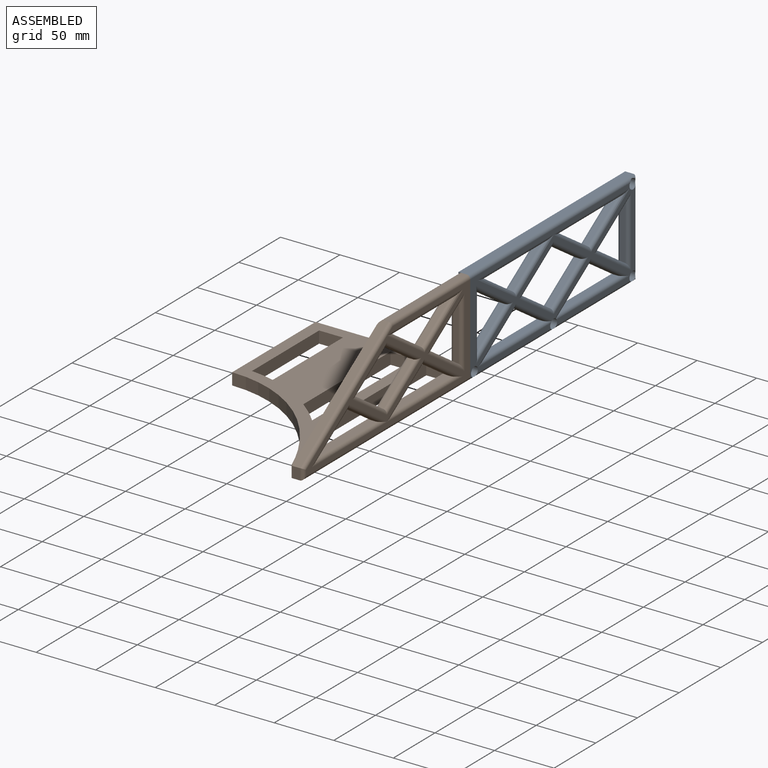
[diagram: assembled view]
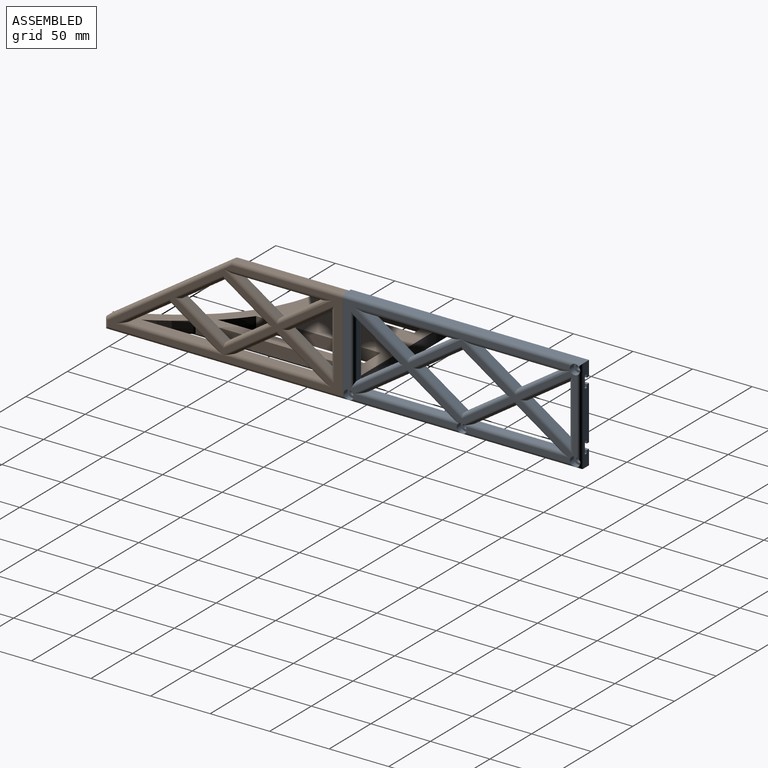
[diagram: assembled view, second angle]
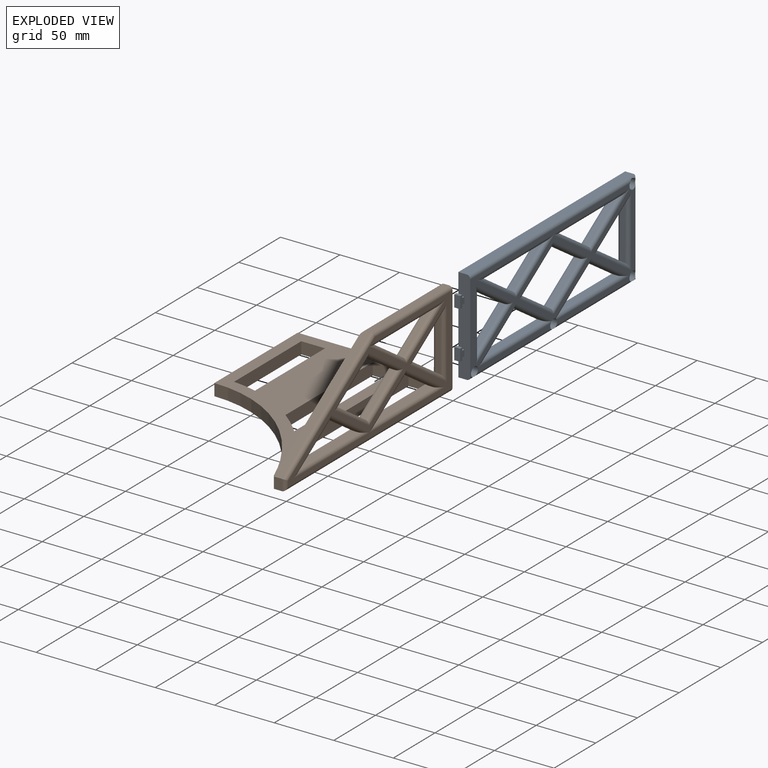
[diagram: exploded view]
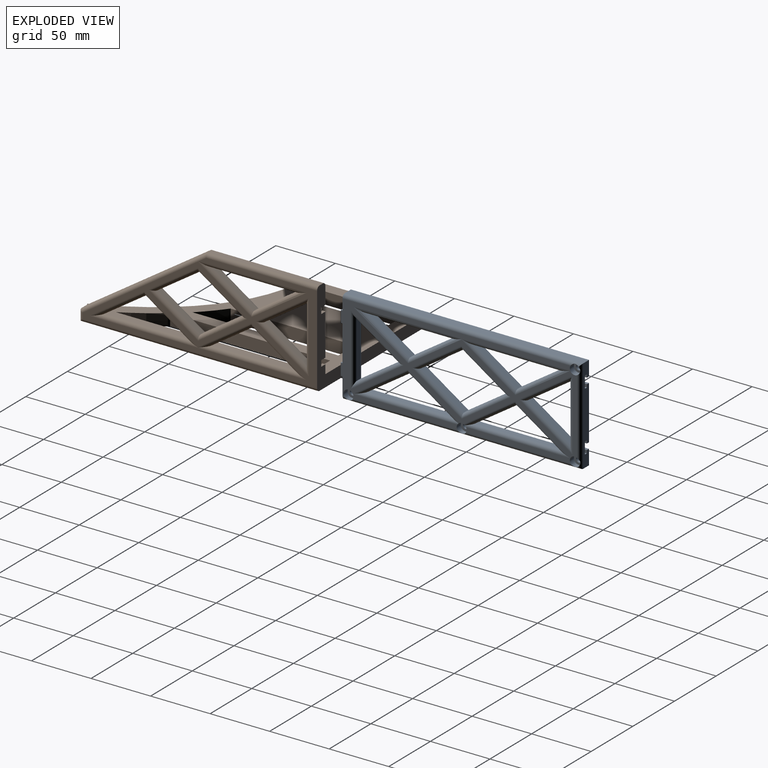
[diagram: exploded view, second angle]
ASSEMBLY  parts=2 mates=3
PART A: 116 faces, bbox 10x205x80 mm
  f0: plane 80x7mm, normal (0,1,0), area 485mm2, adj f8,f26,f33,f35,f84,f85,f86,f87
  f1: plane 197x74mm, normal (1,0,0), area 3906.3mm2, adj f3,f4,f5,f6,f7,f8,f9,f25
  f2: cylinder r=3mm len=181.79mm, axis (0,-1,0), area 745.6mm2, adj f21,f23,f35,f51,f52,f53,f54,f81
  f3: cylinder r=3mm len=88.17mm, axis (0,1,0), area 370.6mm2, adj f1,f5,f23,f70,f83
  f4: cylinder r=3mm len=88.17mm, axis (0,1,0), area 370.6mm2, adj f1,f6,f21,f71,f83
  f5: cylinder r=3mm len=44.94mm, axis (0,-0.83,0.55), area 222.5mm2, adj f1,f3,f32,f70,f83
  f6: cylinder r=3mm len=44.94mm, axis (0,-0.83,-0.55), area 222.5mm2, adj f1,f4,f22,f71,f83
  f7: cylinder r=3mm len=200mm, axis (0,-1,0), area 903mm2, adj f1,f8,f25,f26,f77,f80,f83
  f8: cylinder r=3mm len=80mm, axis (0,0,-1), area 344.8mm2, adj f0,f1,f7,f9,f74,f77
  f9: cylinder r=3mm len=200mm, axis (0,1,0), area 926.4mm2, adj f1,f8,f25,f33,f74
  f10: plane 71.97x4mm, normal (0,0,-1), area 287.9mm2, adj f11,f34,f36,f56
  f11: plane 35.99x23.99mm, normal (0,-0.55,0.83), area 173mm2, adj f10,f34,f40,f59
  f12: plane 35.99x23.99mm, normal (0,-0.55,-0.83), area 173mm2, adj f13,f27,f43,f62
  f13: plane 35.99x23.99mm, normal (0,-0.55,0.83), area 173mm2, adj f12,f14,f41,f60
  f14: plane 35.99x23.99mm, normal (0,0.55,0.83), area 173mm2, adj f13,f27,f42,f61
  f15: plane 35.99x23.99mm, normal (0,0.55,0.83), area 173mm2, adj f16,f28,f37,f55
  f16: plane 71.97x4mm, normal (0,0,-1), area 287.9mm2, adj f15,f28,f36,f56
  f17: plane 35.99x23.99mm, normal (0,-0.55,0.83), area 173mm2, adj f18,f29,f45,f64
  f18: plane 47.98x4mm, normal (0,1,0), area 191.9mm2, adj f17,f29,f46,f65
  f19: plane 47.98x4mm, normal (0,-1,0), area 191.9mm2, adj f20,f30,f48,f67
  f20: plane 35.99x23.99mm, normal (0,0.55,0.83), area 173mm2, adj f19,f30,f49,f68
  f21: plane 71.97x4mm, normal (0,0,1), area 287.9mm2, adj f2,f4,f22,f31
  f22: plane 35.99x23.99mm, normal (0,0.55,-0.83), area 173mm2, adj f6,f21,f31,f53
  f23: plane 71.97x4mm, normal (0,0,1), area 287.9mm2, adj f2,f3,f24,f32
  f24: plane 35.99x23.99mm, normal (0,0.55,-0.83), area 173mm2, adj f23,f32,f51,f70
  f25: plane 80x10mm, normal (0,-1,0), area 746.1mm2, adj f1,f7,f9,f26,f33,f35,f100,f101
  f26: plane 200x7mm, normal (0,0,-1), area 1400mm2, adj f0,f7,f25,f35
  f27: plane 35.99x23.99mm, normal (0,0.55,-0.83), area 173mm2, adj f12,f14,f44,f63
  f28: plane 35.99x23.99mm, normal (0,-0.55,0.83), area 173mm2, adj f15,f16,f38,f57
  f29: plane 35.99x23.99mm, normal (0,-0.55,-0.83), area 173mm2, adj f17,f18,f47,f66
  f30: plane 35.99x23.99mm, normal (0,0.55,-0.83), area 173mm2, adj f19,f20,f50,f69
  f31: plane 35.99x23.99mm, normal (0,-0.55,-0.83), area 173mm2, adj f21,f22,f54,f71
  f32: plane 35.99x23.99mm, normal (0,-0.55,-0.83), area 173mm2, adj f5,f23,f24,f52
  f33: plane 200x7mm, normal (0,0,1), area 1400mm2, adj f0,f9,f25,f35
  f34: plane 35.99x23.99mm, normal (0,0.55,0.83), area 173mm2, adj f10,f11,f39,f58
  f35: plane 205x80mm, normal (-1,0,0), area 5433.5mm2, adj f0,f2,f25,f26,f33,f36,f37,f38
  f36: cylinder r=3mm len=181.79mm, axis (0,1,0), area 745.9mm2, adj f10,f16,f35,f37,f38,f39,f40
  f37: cylinder r=3mm len=47.56mm, axis (0,-0.83,0.55), area 224.2mm2, adj f15,f35,f36,f38
  f38: cylinder r=3mm len=46.81mm, axis (0,-0.83,-0.55), area 224.1mm2, adj f28,f35,f36,f37,f39
  f39: cylinder r=3mm len=46.81mm, axis (0,-0.83,0.55), area 224.1mm2, adj f34,f35,f36,f38,f40
  f40: cylinder r=3mm len=47.56mm, axis (0,-0.83,-0.55), area 224.2mm2, adj f11,f35,f36,f39
  f41: cylinder r=3mm len=43.06mm, axis (0,-0.83,-0.55), area 214.9mm2, adj f13,f35,f42,f43
  f42: cylinder r=3mm len=43.06mm, axis (0,-0.83,0.55), area 214.9mm2, adj f14,f35,f41,f44
  f43: cylinder r=3mm len=43.06mm, axis (0,0.83,-0.55), area 214.9mm2, adj f12,f35,f41,f44
  f44: cylinder r=3mm len=43.06mm, axis (0,0.83,0.55), area 214.9mm2, adj f27,f35,f42,f43
  f45: cylinder r=3mm len=46.06mm, axis (0,-0.83,-0.55), area 221.1mm2, adj f17,f35,f46,f47
  f46: cylinder r=3mm len=59.19mm, axis (0,0,1), area 245.3mm2, adj f18,f35,f45,f47
  f47: cylinder r=3mm len=46.06mm, axis (0,0.83,-0.55), area 221.1mm2, adj f29,f35,f45,f46
  f48: cylinder r=3mm len=59.19mm, axis (0,0,-1), area 245.3mm2, adj f19,f35,f49,f50
  f49: cylinder r=3mm len=46.06mm, axis (0,-0.83,0.55), area 221.1mm2, adj f20,f35,f48,f50
  f50: cylinder r=3mm len=46.06mm, axis (0,0.83,0.55), area 221.1mm2, adj f30,f35,f48,f49
  f51: cylinder r=3mm len=47.56mm, axis (0,0.83,0.55), area 224.2mm2, adj f2,f24,f35,f52
  f52: cylinder r=3mm len=46.81mm, axis (0,0.83,-0.55), area 224.1mm2, adj f2,f32,f35,f51,f53
  f53: cylinder r=3mm len=46.81mm, axis (0,0.83,0.55), area 224.1mm2, adj f2,f22,f35,f52,f54
  f54: cylinder r=3mm len=47.56mm, axis (0,0.83,-0.55), area 224.2mm2, adj f2,f31,f35,f53
  f55: cylinder r=3mm len=47.56mm, axis (0,0.83,-0.55), area 224.2mm2, adj f1,f15,f56,f57
  f56: cylinder r=3mm len=181.79mm, axis (0,-1,0), area 745.9mm2, adj f1,f10,f16,f55,f57,f58,f59
  f57: cylinder r=3mm len=46.81mm, axis (0,0.83,0.55), area 224.1mm2, adj f1,f28,f55,f56,f58
  f58: cylinder r=3mm len=46.81mm, axis (0,0.83,-0.55), area 224.1mm2, adj f1,f34,f56,f57,f59
  f59: cylinder r=3mm len=47.56mm, axis (0,0.83,0.55), area 224.2mm2, adj f1,f11,f56,f58
  f60: cylinder r=3mm len=43.06mm, axis (0,0.83,0.55), area 214.9mm2, adj f1,f13,f61,f62
  f61: cylinder r=3mm len=43.06mm, axis (0,0.83,-0.55), area 214.9mm2, adj f1,f14,f60,f63
  f62: cylinder r=3mm len=43.06mm, axis (0,-0.83,0.55), area 214.9mm2, adj f1,f12,f60,f63
  f63: cylinder r=3mm len=43.06mm, axis (0,-0.83,-0.55), area 214.9mm2, adj f1,f27,f61,f62
  f64: cylinder r=3mm len=46.06mm, axis (0,0.83,0.55), area 221.1mm2, adj f1,f17,f65,f66
  f65: cylinder r=3mm len=59.19mm, axis (0,0,-1), area 245.3mm2, adj f1,f18,f64,f66
  f66: cylinder r=3mm len=46.06mm, axis (0,-0.83,0.55), area 221.1mm2, adj f1,f29,f64,f65
  f67: cylinder r=3mm len=59.19mm, axis (0,0,1), area 245.3mm2, adj f1,f19,f68,f69
  f68: cylinder r=3mm len=46.06mm, axis (0,0.83,-0.55), area 221.1mm2, adj f1,f20,f67,f69
  f69: cylinder r=3mm len=46.06mm, axis (0,-0.83,-0.55), area 221.1mm2, adj f1,f30,f67,f68
  f70: cylinder r=3mm len=47.56mm, axis (0,-0.83,-0.55), area 224.2mm2, adj f1,f3,f5,f24
  f71: cylinder r=3mm len=47.56mm, axis (0,-0.83,0.55), area 224.2mm2, adj f1,f4,f6,f31
  f72: cylinder r=2.25mm len=5.12mm, axis (1,0,0), area 72.3mm2, adj f35,f73
  f73: plane 8.25x8.25mm, normal (1,0,0), area 37.6mm2, adj f72,f74
  f74: cylinder r=4.12mm len=8.25mm, axis (1,0,0), area 119mm2, adj f1,f8,f9,f73
  f75: cylinder r=2.25mm len=5.12mm, axis (1,0,0), area 72.3mm2, adj f35,f76
  f76: plane 8.25x8.25mm, normal (1,0,0), area 37.6mm2, adj f75,f77
  f77: cylinder r=4.12mm len=8.25mm, axis (1,0,0), area 119mm2, adj f1,f7,f8,f76
  f78: cylinder r=2.25mm len=5.12mm, axis (1,0,0), area 72.3mm2, adj f35,f79
  f79: plane 8.25x8.25mm, normal (1,0,0), area 37.6mm2, adj f78,f80
  f80: cylinder r=4.12mm len=8.25mm, axis (1,0,0), area 122.7mm2, adj f1,f7,f79
  f81: cylinder r=2.25mm len=5.12mm, axis (1,0,0), area 72.3mm2, adj f2,f35,f82
  f82: plane 8.25x8.25mm, normal (1,0,0), area 37.6mm2, adj f81,f83
  f83: cylinder r=4.12mm len=8.25mm, axis (1,0,0), area 122.2mm2, adj f1,f3,f4,f5,f6,f7,f82
  f84: plane 5x2.5mm, normal (0,0,-1), area 12.5mm2, adj f0,f35,f85,f91
  f85: plane 5x2.5mm, normal (1,0,0), area 12.5mm2, adj f0,f84,f86,f91
  f86: plane 5x2.5mm, normal (0,0,-1), area 12.5mm2, adj f0,f85,f87,f91
  f87: plane 10x5mm, normal (-1,0,0), area 50mm2, adj f0,f86,f88,f91
  f88: plane 5x2.5mm, normal (0,0,1), area 12.5mm2, adj f0,f87,f89,f91
  f89: plane 5x2.5mm, normal (1,0,0), area 12.5mm2, adj f0,f88,f90,f91
  f90: plane 5x2.5mm, normal (0,0,1), area 12.5mm2, adj f0,f35,f89,f91
  f91: plane 10x5mm, normal (0,1,0), area 37.5mm2, adj f35,f84,f85,f86,f87,f88,f89,f90
  f92: plane 5x2.5mm, normal (0,0,-1), area 12.5mm2, adj f0,f35,f93,f99
  f93: plane 5x2.5mm, normal (1,0,0), area 12.5mm2, adj f0,f92,f94,f99
  f94: plane 5x2.5mm, normal (0,0,-1), area 12.5mm2, adj f0,f93,f95,f99
  f95: plane 10x5mm, normal (-1,0,0), area 50mm2, adj f0,f94,f96,f99
  f96: plane 5x2.5mm, normal (0,0,1), area 12.5mm2, adj f0,f95,f97,f99
  f97: plane 5x2.5mm, normal (1,0,0), area 12.5mm2, adj f0,f96,f98,f99
  f98: plane 5x2.5mm, normal (0,0,1), area 12.5mm2, adj f0,f35,f97,f99
  f99: plane 10x5mm, normal (0,1,0), area 37.5mm2, adj f35,f92,f93,f94,f95,f96,f97,f98
  f100: plane 5x2.5mm, normal (0,0,1), area 12.5mm2, adj f25,f35,f106,f107
  f101: plane 5x2.5mm, normal (0,0,-1), area 12.5mm2, adj f25,f35,f102,f107
  f102: plane 5x2.5mm, normal (0,1,0), area 12.5mm2, adj f35,f101,f103,f107
  f103: plane 5x2.5mm, normal (0,0,-1), area 12.5mm2, adj f35,f102,f104,f107
  f104: plane 10x5mm, normal (0,-1,0), area 50mm2, adj f35,f103,f105,f107
  f105: plane 5x2.5mm, normal (0,0,1), area 12.5mm2, adj f35,f104,f106,f107
  f106: plane 5x2.5mm, normal (0,1,0), area 12.5mm2, adj f35,f100,f105,f107
  f107: plane 10x5mm, normal (1,0,0), area 37.5mm2, adj f25,f100,f101,f102,f103,f104,f105,f106
  f108: plane 5x2.5mm, normal (0,0,1), area 12.5mm2, adj f25,f35,f114,f115
  f109: plane 5x2.5mm, normal (0,0,-1), area 12.5mm2, adj f25,f35,f110,f115
  f110: plane 5x2.5mm, normal (0,1,0), area 12.5mm2, adj f35,f109,f111,f115
  f111: plane 5x2.5mm, normal (0,0,-1), area 12.5mm2, adj f35,f110,f112,f115
  f112: plane 10x5mm, normal (0,-1,0), area 50mm2, adj f35,f111,f113,f115
  f113: plane 5x2.5mm, normal (0,0,1), area 12.5mm2, adj f35,f112,f114,f115
  f114: plane 5x2.5mm, normal (0,1,0), area 12.5mm2, adj f35,f108,f113,f115
  f115: plane 10x5mm, normal (1,0,0), area 37.5mm2, adj f25,f108,f109,f110,f111,f112,f113,f114
PART B: 87 faces, bbox 130x200x80 mm
  f0: plane 199.01x77mm, normal (-1,0,0), area 4263.9mm2, adj f7,f8,f12,f14,f17,f23,f24,f25
  f1: plane 71.97x4mm, normal (0,0,-1), area 287.9mm2, adj f2,f21,f23,f42
  f2: plane 35.99x23.99mm, normal (0,-0.55,0.83), area 173mm2, adj f1,f21,f25,f44
  f3: plane 35.99x23.99mm, normal (0,-0.55,-0.83), area 173mm2, adj f4,f16,f28,f47
  f4: plane 35.99x23.99mm, normal (0,-0.55,0.83), area 173mm2, adj f3,f5,f26,f45
  f5: plane 35.99x23.99mm, normal (0,0.55,0.83), area 173mm2, adj f4,f16,f27,f46
  f6: plane 9.34x7mm, normal (0,-1,0), area 65.4mm2, adj f7,f17,f39,f79
  f7: plane 200x127mm, normal (0,0,-1), area 10003.9mm2, adj f0,f6,f8,f38,f73,f74,f75,f76
  f8: plane 130x80mm, normal (0,1,0), area 1944.2mm2, adj f0,f7,f9,f14,f22,f30,f38,f40
  f9: plane 94.01x4mm, normal (0,0,1), area 376.1mm2, adj f8,f17,f30,f40
  f10: plane 47.98x4mm, normal (0,-1,0), area 191.9mm2, adj f11,f18,f31,f49
  f11: plane 35.99x23.99mm, normal (0,0.55,0.83), area 173mm2, adj f10,f18,f32,f50
  f12: plane 82.79x7mm, normal (0,0,1), area 510.8mm2, adj f0,f13,f19,f34,f35,f53
  f13: plane 35.99x23.99mm, normal (0,0.55,-0.83), area 173mm2, adj f12,f19,f34,f55
  f14: plane 200x127mm, normal (0,0,1), area 9114.7mm2, adj f0,f8,f15,f20,f36,f37,f53,f73
  f15: plane 35.99x23.99mm, normal (0,0.55,-0.83), area 173mm2, adj f14,f20,f36,f52
  f16: plane 35.99x23.99mm, normal (0,0.55,-0.83), area 173mm2, adj f3,f5,f29,f48
  f17: plane 105.99x70.66mm, normal (0,-0.55,0.83), area 888.2mm2, adj f0,f6,f9,f30,f41,f78
  f18: plane 35.99x23.99mm, normal (0,0.55,-0.83), area 173mm2, adj f10,f11,f33,f51
  f19: plane 35.99x23.99mm, normal (0,-0.55,-0.83), area 173mm2, adj f12,f13,f35,f56
  f20: plane 35.99x23.99mm, normal (0,-0.55,-0.83), area 173mm2, adj f14,f15,f37,f54
  f21: plane 35.99x23.99mm, normal (0,0.55,0.83), area 173mm2, adj f1,f2,f24,f43
  f22: plane 197x74mm, normal (1,0,0), area 3169.9mm2, adj f8,f38,f39,f40,f41,f42,f43,f44
  f23: cylinder r=3mm len=91.79mm, axis (0,1,0), area 373.1mm2, adj f0,f1,f24,f25
  f24: cylinder r=3mm len=47.56mm, axis (0,-0.83,0.55), area 224.2mm2, adj f0,f21,f23,f25
  f25: cylinder r=3mm len=47.56mm, axis (0,-0.83,-0.55), area 224.2mm2, adj f0,f2,f23,f24
  f26: cylinder r=3mm len=43.06mm, axis (0,-0.83,-0.55), area 214.9mm2, adj f0,f4,f27,f28
  f27: cylinder r=3mm len=43.06mm, axis (0,-0.83,0.55), area 214.9mm2, adj f0,f5,f26,f29
  f28: cylinder r=3mm len=43.06mm, axis (0,0.83,-0.55), area 214.9mm2, adj f0,f3,f26,f29
  f29: cylinder r=3mm len=43.06mm, axis (0,0.83,0.55), area 214.9mm2, adj f0,f16,f27,f28
  f30: cylinder r=3mm len=98.51mm, axis (0,-1,0), area 450.7mm2, adj f0,f8,f9,f17
  f31: cylinder r=3mm len=59.19mm, axis (0,0,-1), area 245.3mm2, adj f0,f10,f32,f33
  f32: cylinder r=3mm len=46.06mm, axis (0,-0.83,0.55), area 221.1mm2, adj f0,f11,f31,f33
  f33: cylinder r=3mm len=46.06mm, axis (0,0.83,0.55), area 221.1mm2, adj f0,f18,f31,f32
  f34: cylinder r=3mm len=43.06mm, axis (0,0.83,0.55), area 214.9mm2, adj f0,f12,f13,f35
  f35: cylinder r=3mm len=43.06mm, axis (0,0.83,-0.55), area 214.9mm2, adj f0,f12,f19,f34
  f36: cylinder r=3mm len=43.06mm, axis (0,0.83,0.55), area 214.9mm2, adj f0,f14,f15,f37
  f37: cylinder r=3mm len=43.06mm, axis (0,0.83,-0.55), area 214.9mm2, adj f0,f14,f20,f36
  f38: cylinder r=3mm len=200mm, axis (0,-1,0), area 937.3mm2, adj f7,f8,f22,f39
  f39: cylinder r=3mm len=9.34mm, axis (0,0,1), area 36.1mm2, adj f6,f22,f38,f41
  f40: cylinder r=3mm len=94.01mm, axis (0,1,0), area 441.5mm2, adj f8,f9,f22,f41
  f41: cylinder r=3mm len=107.65mm, axis (0,0.83,0.55), area 595.8mm2, adj f17,f22,f39,f40,f42,f43
  f42: cylinder r=3mm len=90.89mm, axis (0,-1,0), area 372.9mm2, adj f1,f22,f41,f43,f44
  f43: cylinder r=3mm len=46.81mm, axis (0,0.83,-0.55), area 224.1mm2, adj f21,f22,f41,f42,f44
  f44: cylinder r=3mm len=47.56mm, axis (0,0.83,0.55), area 224.2mm2, adj f2,f22,f42,f43
  f45: cylinder r=3mm len=43.06mm, axis (0,0.83,0.55), area 214.9mm2, adj f4,f22,f46,f47
  f46: cylinder r=3mm len=43.06mm, axis (0,0.83,-0.55), area 214.9mm2, adj f5,f22,f45,f48
  f47: cylinder r=3mm len=43.06mm, axis (0,-0.83,0.55), area 214.9mm2, adj f3,f22,f45,f48
  f48: cylinder r=3mm len=43.06mm, axis (0,-0.83,-0.55), area 214.9mm2, adj f16,f22,f46,f47
  f49: cylinder r=3mm len=59.19mm, axis (0,0,1), area 245.3mm2, adj f10,f22,f50,f51
  f50: cylinder r=3mm len=46.06mm, axis (0,0.83,-0.55), area 221.1mm2, adj f11,f22,f49,f51
  f51: cylinder r=3mm len=46.06mm, axis (0,-0.83,-0.55), area 221.1mm2, adj f18,f22,f49,f50
  f52: cylinder r=3mm len=47.56mm, axis (0,-0.83,-0.55), area 224.2mm2, adj f15,f22,f53,f54
  f53: cylinder r=3mm len=181.79mm, axis (0,1,0), area 745.9mm2, adj f12,f14,f22,f52,f54,f55,f56
  f54: cylinder r=3mm len=46.81mm, axis (0,-0.83,0.55), area 224.1mm2, adj f20,f22,f52,f53,f55
  f55: cylinder r=3mm len=46.81mm, axis (0,-0.83,-0.55), area 224.1mm2, adj f13,f22,f53,f54,f56
  f56: cylinder r=3mm len=47.56mm, axis (0,-0.83,0.55), area 224.2mm2, adj f19,f22,f53,f55
  f57: plane 5x2.5mm, normal (0,-1,0), area 12.5mm2, adj f0,f58,f63,f64
  f58: plane 5x2.5mm, normal (0,0,-1), area 12.5mm2, adj f0,f8,f57,f64
  f59: plane 5x2.5mm, normal (0,0,1), area 12.5mm2, adj f0,f8,f60,f64
  f60: plane 5x2.5mm, normal (0,-1,0), area 12.5mm2, adj f0,f59,f61,f64
  f61: plane 5x2.5mm, normal (0,0,1), area 12.5mm2, adj f0,f60,f62,f64
  f62: plane 10x5mm, normal (0,1,0), area 50mm2, adj f0,f61,f63,f64
  f63: plane 5x2.5mm, normal (0,0,-1), area 12.5mm2, adj f0,f57,f62,f64
  f64: plane 10x5mm, normal (-1,0,0), area 37.5mm2, adj f8,f57,f58,f59,f60,f61,f62,f63
  f65: plane 5x2.5mm, normal (0,-1,0), area 12.5mm2, adj f0,f66,f71,f72
  f66: plane 5x2.5mm, normal (0,0,-1), area 12.5mm2, adj f0,f8,f65,f72
  f67: plane 5x2.5mm, normal (0,0,1), area 12.5mm2, adj f0,f8,f68,f72
  f68: plane 5x2.5mm, normal (0,-1,0), area 12.5mm2, adj f0,f67,f69,f72
  f69: plane 5x2.5mm, normal (0,0,1), area 12.5mm2, adj f0,f68,f70,f72
  f70: plane 10x5mm, normal (0,1,0), area 50mm2, adj f0,f69,f71,f72
  f71: plane 5x2.5mm, normal (0,0,-1), area 12.5mm2, adj f0,f65,f70,f72
  f72: plane 10x5mm, normal (-1,0,0), area 37.5mm2, adj f8,f65,f66,f67,f68,f69,f70,f71
  f73: plane 104.61x10mm, normal (1,0,0), area 1046.1mm2, adj f7,f14,f74,f86
  f74: extruded ~20x18.08mm, area 270mm2, adj f7,f14,f73,f75
  f75: plane 122.69x10mm, normal (-1,0,0), area 1226.9mm2, adj f7,f14,f74,f86
  f76: plane 134.44x10mm, normal (1,0,0), area 1344.4mm2, adj f7,f14,f77,f84
  f77: extruded ~31.48x20mm, area 373.5mm2, adj f0,f7,f14,f76
  f78: plane 0.99x0.66mm, normal (1,0,0), area 0.3mm2, adj f14,f17,f79
  f79: extruded ~120x100mm, area 1657.9mm2, adj f6,f7,f14,f78,f80
  f80: plane 100x10mm, normal (-1,0,0), area 1000mm2, adj f7,f8,f14,f79
  f81: plane 80.47x10mm, normal (1,0,0), area 804.7mm2, adj f7,f14,f82,f85
  f82: extruded ~20x10mm, area 203.9mm2, adj f7,f14,f81,f83
  f83: plane 84.29x10mm, normal (-1,0,0), area 842.9mm2, adj f7,f14,f82,f85
  f84: plane 20x10mm, normal (0,-1,0), area 200mm2, adj f0,f7,f14,f76
  f85: plane 20x10mm, normal (0,-1,0), area 200mm2, adj f7,f14,f81,f83
  f86: plane 20x10mm, normal (0,-1,0), area 200mm2, adj f7,f14,f73,f75
PLACE A t=(-23.92,176.46,73.76)mm
PLACE B t=(-23.92,232.1,73.76)mm
MATE planar A.f9 <-> B.f8  axis (0,-1,0) through (-16.92,176.46,150.76)mm
MATE planar A.f35 <-> B.f0  axis (-1,0,0) through (-23.92,185.57,146.76)mm
MATE planar B.f66 <-> A.f100  axis (0,0,-1) through (-21.42,175.21,136.26)mm
